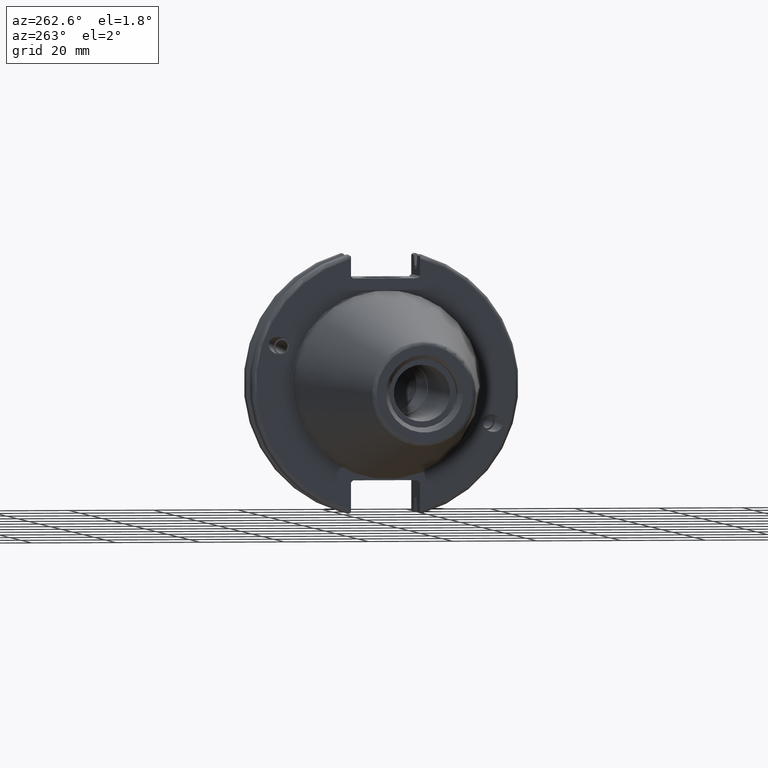
[diagram: clean part render]
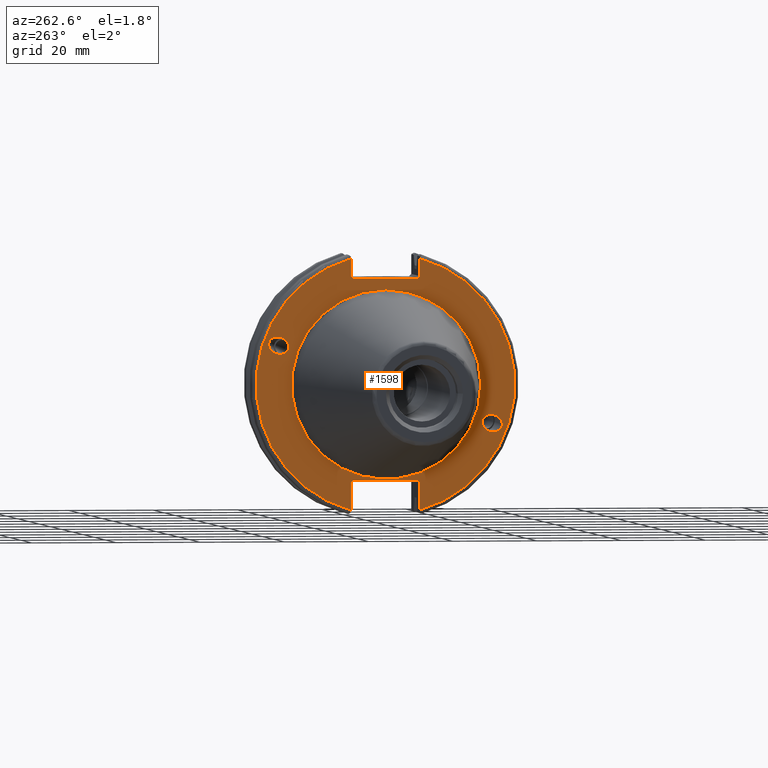
[diagram: same view with one face highlighted and labeled with its STEP entity id]
A machine part, auxiliary view. The second image highlights one B-rep face of the part: STEP entity #1598.
In plain terms, the highlighted planar face has unit normal (-1, 0, 0).
Its self-contained STEP definition (entity closure, byte-faithful):
#117=LINE('',#2831,#212);
#118=LINE('',#2833,#213);
#119=LINE('',#2835,#214);
#120=LINE('',#2837,#215);
#121=LINE('',#2839,#216);
#122=LINE('',#2843,#217);
#123=LINE('',#2845,#218);
#124=LINE('',#2847,#219);
#125=LINE('',#2849,#220);
#126=LINE('',#2850,#221);
#212=VECTOR('',#2136,10.);
#213=VECTOR('',#2137,10.);
#214=VECTOR('',#2138,10.);
#215=VECTOR('',#2139,10.);
#216=VECTOR('',#2140,10.);
#217=VECTOR('',#2143,10.);
#218=VECTOR('',#2144,10.);
#219=VECTOR('',#2145,10.);
#220=VECTOR('',#2146,10.);
#221=VECTOR('',#2147,10.);
#310=FACE_BOUND('',#525,.T.);
#311=FACE_BOUND('',#526,.T.);
#312=FACE_BOUND('',#527,.T.);
#326=ELLIPSE('',#1731,2.44154917752292,2.00000000000001);
#335=ELLIPSE('',#1774,2.44154917752292,2.00000000000001);
#349=PLANE('',#1784);
#421=FACE_OUTER_BOUND('',#524,.T.);
#524=EDGE_LOOP('',(#1289,#1290,#1291,#1292,#1293,#1294,#1295,#1296,#1297,
#1298,#1299,#1300));
#525=EDGE_LOOP('',(#1301));
#526=EDGE_LOOP('',(#1302));
#527=EDGE_LOOP('',(#1303));
#625=CIRCLE('',#1782,22.3);
#627=CIRCLE('',#1785,30.75);
#628=CIRCLE('',#1786,30.75);
#705=VERTEX_POINT('',#2624);
#745=VERTEX_POINT('',#2807);
#750=VERTEX_POINT('',#2822);
#751=VERTEX_POINT('',#2827);
#752=VERTEX_POINT('',#2828);
#753=VERTEX_POINT('',#2830);
#754=VERTEX_POINT('',#2832);
#755=VERTEX_POINT('',#2834);
#756=VERTEX_POINT('',#2836);
#757=VERTEX_POINT('',#2838);
#758=VERTEX_POINT('',#2840);
#759=VERTEX_POINT('',#2842);
#760=VERTEX_POINT('',#2844);
#761=VERTEX_POINT('',#2846);
#762=VERTEX_POINT('',#2848);
#885=EDGE_CURVE('',#705,#705,#326,.T.);
#941=EDGE_CURVE('',#745,#745,#335,.T.);
#948=EDGE_CURVE('',#750,#750,#625,.T.);
#950=EDGE_CURVE('',#751,#752,#627,.T.);
#951=EDGE_CURVE('',#751,#753,#117,.T.);
#952=EDGE_CURVE('',#754,#753,#118,.T.);
#953=EDGE_CURVE('',#754,#755,#119,.T.);
#954=EDGE_CURVE('',#756,#755,#120,.T.);
#955=EDGE_CURVE('',#756,#757,#121,.T.);
#956=EDGE_CURVE('',#758,#757,#628,.T.);
#957=EDGE_CURVE('',#758,#759,#122,.T.);
#958=EDGE_CURVE('',#760,#759,#123,.T.);
#959=EDGE_CURVE('',#760,#761,#124,.T.);
#960=EDGE_CURVE('',#762,#761,#125,.T.);
#961=EDGE_CURVE('',#762,#752,#126,.T.);
#1289=ORIENTED_EDGE('',*,*,#950,.F.);
#1290=ORIENTED_EDGE('',*,*,#951,.T.);
#1291=ORIENTED_EDGE('',*,*,#952,.F.);
#1292=ORIENTED_EDGE('',*,*,#953,.T.);
#1293=ORIENTED_EDGE('',*,*,#954,.F.);
#1294=ORIENTED_EDGE('',*,*,#955,.T.);
#1295=ORIENTED_EDGE('',*,*,#956,.F.);
#1296=ORIENTED_EDGE('',*,*,#957,.T.);
#1297=ORIENTED_EDGE('',*,*,#958,.F.);
#1298=ORIENTED_EDGE('',*,*,#959,.T.);
#1299=ORIENTED_EDGE('',*,*,#960,.F.);
#1300=ORIENTED_EDGE('',*,*,#961,.T.);
#1301=ORIENTED_EDGE('',*,*,#885,.T.);
#1302=ORIENTED_EDGE('',*,*,#941,.T.);
#1303=ORIENTED_EDGE('',*,*,#948,.F.);
#1598=ADVANCED_FACE('',(#421,#310,#311,#312),#349,.T.);
#1731=AXIS2_PLACEMENT_3D('',#2626,#2007,#2008);
#1774=AXIS2_PLACEMENT_3D('',#2809,#2110,#2111);
#1782=AXIS2_PLACEMENT_3D('',#2824,#2128,#2129);
#1784=AXIS2_PLACEMENT_3D('',#2826,#2132,#2133);
#1785=AXIS2_PLACEMENT_3D('',#2829,#2134,#2135);
#1786=AXIS2_PLACEMENT_3D('',#2841,#2141,#2142);
#2007=DIRECTION('center_axis',(1.,0.,0.));
#2008=DIRECTION('ref_axis',(5.68400912649E-17,-0.939692620785909,-0.342020143325667));
#2110=DIRECTION('center_axis',(1.,0.,0.));
#2111=DIRECTION('ref_axis',(5.68400912649E-17,0.939692620785909,0.342020143325667));
#2128=DIRECTION('center_axis',(-1.,0.,0.));
#2129=DIRECTION('ref_axis',(0.,-1.,1.83697019872103E-16));
#2132=DIRECTION('center_axis',(-1.,0.,0.));
#2133=DIRECTION('ref_axis',(0.,0.,1.));
#2134=DIRECTION('center_axis',(1.,0.,0.));
#2135=DIRECTION('ref_axis',(0.,-1.,1.60812264967664E-16));
#2136=DIRECTION('',(0.,0.,-1.));
#2137=DIRECTION('',(0.,-0.70710678118655,0.707106781186545));
#2138=DIRECTION('',(0.,1.,0.));
#2139=DIRECTION('',(0.,-0.707106781186549,-0.707106781186546));
#2140=DIRECTION('',(0.,0.,1.));
#2141=DIRECTION('center_axis',(1.,0.,0.));
#2142=DIRECTION('ref_axis',(0.,1.,1.60812264967664E-16));
#2143=DIRECTION('',(0.,0.,1.));
#2144=DIRECTION('',(0.,0.707106781186549,-0.707106781186546));
#2145=DIRECTION('',(0.,-1.,0.));
#2146=DIRECTION('',(0.,0.707106781186549,0.707106781186546));
#2147=DIRECTION('',(0.,0.,-1.));
#2624=CARTESIAN_POINT('',(3.175,-23.0773950158153,-8.39948487016));
#2626=CARTESIAN_POINT('Origin',(3.175,-25.3717007612195,-9.23454386979305));
#2807=CARTESIAN_POINT('',(3.175,23.0773950158153,8.39948487016));
#2809=CARTESIAN_POINT('Origin',(3.175,25.3717007612195,9.23454386979306));
#2822=CARTESIAN_POINT('',(3.175,-2.7309623620986E-15,22.3));
#2824=CARTESIAN_POINT('Origin',(3.175,0.,0.));
#2826=CARTESIAN_POINT('Origin',(3.175,31.75,0.));
#2827=CARTESIAN_POINT('',(3.175,-8.18999999999999,29.6392712461019));
#2828=CARTESIAN_POINT('',(3.175,-8.19,-29.6392712461019));
#2829=CARTESIAN_POINT('Origin',(3.175,0.,0.));
#2830=CARTESIAN_POINT('',(3.175,-8.18999999999999,25.5));
#2831=CARTESIAN_POINT('',(3.175,-8.18999999999999,12.5));
#2832=CARTESIAN_POINT('',(3.175,-7.68999999999999,25.));
#2833=CARTESIAN_POINT('',(3.175,8.29500000000007,9.01500000000004));
#2834=CARTESIAN_POINT('',(3.175,7.69,25.));
#2835=CARTESIAN_POINT('',(3.175,15.875,25.));
#2836=CARTESIAN_POINT('',(3.175,8.19,25.5));
#2837=CARTESIAN_POINT('',(3.175,7.58000000000002,24.89));
#2838=CARTESIAN_POINT('',(3.175,8.19,29.6392712461019));
#2839=CARTESIAN_POINT('',(3.175,8.19,12.5));
#2840=CARTESIAN_POINT('',(3.175,8.18999999999999,-29.6392712461019));
#2841=CARTESIAN_POINT('Origin',(3.175,0.,0.));
#2842=CARTESIAN_POINT('',(3.175,8.18999999999999,-23.1));
#2843=CARTESIAN_POINT('',(3.175,8.18999999999999,-11.3));
#2844=CARTESIAN_POINT('',(3.175,7.69,-22.6));
#2845=CARTESIAN_POINT('',(3.175,8.18000000000002,-23.09));
#2846=CARTESIAN_POINT('',(3.175,-7.69,-22.6));
#2847=CARTESIAN_POINT('',(3.175,15.875,-22.6));
#2848=CARTESIAN_POINT('',(3.175,-8.19,-23.1));
#2849=CARTESIAN_POINT('',(3.175,7.69500000000004,-7.21500000000002));
#2850=CARTESIAN_POINT('',(3.175,-8.19,-11.3));